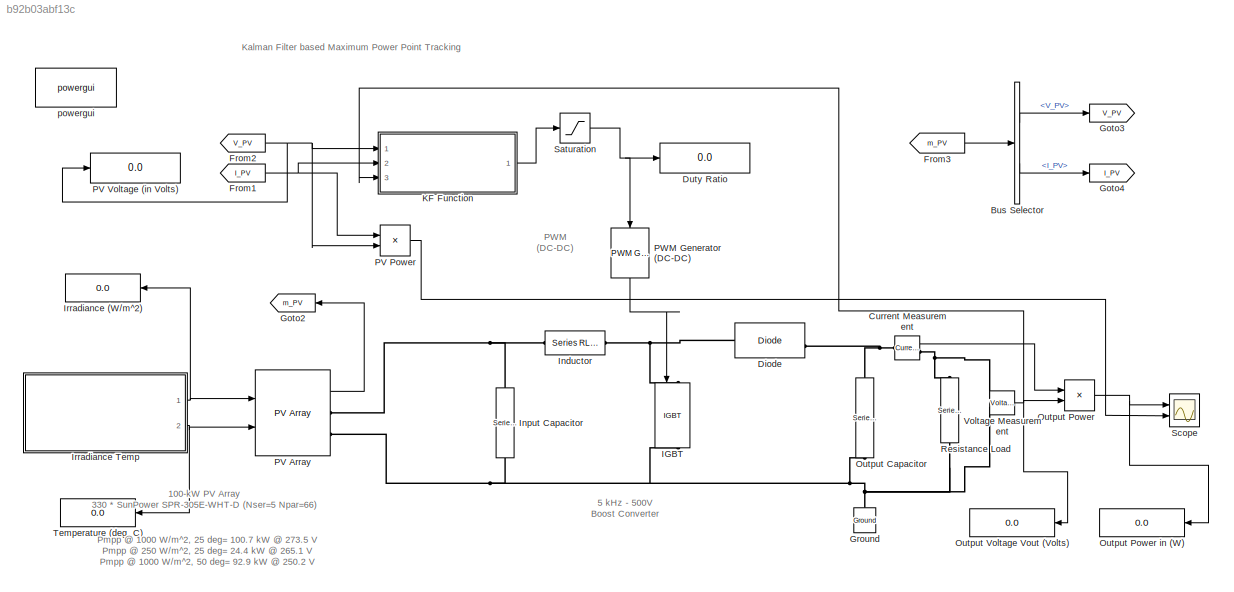
MODEL slx_b92b03abf13c
KIND model
CONFIG AbsTol = auto
CONFIG EnableMultiTasking = off
CONFIG FixedStep = auto
CONFIG MaxStep = auto
CONFIG MinStep = auto
CONFIG RelTol = 1e-3
CONFIG SampleTimeConstraint = Unconstrained
CONFIG Solver = ode23tb
CONFIG SolverName = ode23tb
CONFIG StartTime = 0.0
CONFIG StopTime = 3
BLOCK [Reference]  Output Capacitor     REF=powerlib/Elements/Series RLC Branch
  Ports = [0, 0, 0, 0, 0, 1, 1]
  SourceBlock = powerlib/Elements/Series RLC Branch
  SourceProductBaseCode = PS
  SourceProductName = Simscape Power Systems
  SourceType = Series RLC Branch
BLOCK [Reference]  Resistance Load        REF=powerlib/Elements/Series RLC Branch
  Ports = [0, 0, 0, 0, 0, 1, 1]
  SourceBlock = powerlib/Elements/Series RLC Branch
  SourceProductBaseCode = PS
  SourceProductName = Simscape Power Systems
  SourceType = Series RLC Branch
BLOCK [BusSelector] Bus Selector
  OutputAsBus = off
  OutputSignals = V_PV,I_PV
  Ports = [1, 2]
BLOCK [Reference] Current Measurement  REF=powerlib/Measurements/Current Measurement
  Ports = [0, 1, 0, 0, 0, 1, 1]
  SourceBlock = powerlib/Measurements/Current Measurement
  SourceProductBaseCode = PS
  SourceProductName = Simscape Power Systems
  SourceType = Current Measurement
  UserDataPersistent = on
BLOCK [Reference] Diode   REF=powerlib/Power
Electronics/Diode
  Ports = [0, 1, 0, 0, 0, 1, 1]
  SourceBlock = powerlib/Power\nElectronics/Diode
  SourceProductBaseCode = PS
  SourceProductName = Simscape Power Systems
  SourceType = Diode
BLOCK [Display] Duty Ratio
  Decimation = 1000
  Format = bank
  Ports = [1]
BLOCK [From] From1
  CloseFcn = tagdialog Close
  GotoTag = I_PV
  TagVisibility = global
BLOCK [From] From2
  CloseFcn = tagdialog Close
  GotoTag = V_PV
  TagVisibility = global
BLOCK [From] From3
  GotoTag = m_PV
  TagVisibility = global
BLOCK [Goto] Goto2
  GotoTag = m_PV
  TagVisibility = global
BLOCK [Goto] Goto3
  GotoTag = V_PV
  TagVisibility = global
BLOCK [Goto] Goto4
  GotoTag = I_PV
  TagVisibility = global
BLOCK [Reference] Ground  REF=powerlib/Elements/Ground
  Ports = [0, 0, 0, 0, 0, 1]
  SourceBlock = powerlib/Elements/Ground
  SourceProductBaseCode = PS
  SourceProductName = Simscape Power Systems
  SourceType = Ground
BLOCK [Reference] IGBT    REF=powerlib/Power
Electronics/IGBT
  Ports = [1, 1, 0, 0, 0, 1, 1]
  SourceBlock = powerlib/Power\nElectronics/IGBT
  SourceProductBaseCode = PS
  SourceProductName = Simscape Power Systems
  SourceType = IGBT
BLOCK [Reference] Inductor   REF=powerlib/Elements/Series RLC Branch
  Ports = [0, 0, 0, 0, 0, 1, 1]
  SourceBlock = powerlib/Elements/Series RLC Branch
  SourceProductBaseCode = PS
  SourceProductName = Simscape Power Systems
  SourceType = Series RLC Branch
BLOCK [Reference] Input Capacitor   REF=powerlib/Elements/Series RLC Branch
  Ports = [0, 0, 0, 0, 0, 1, 1]
  SourceBlock = powerlib/Elements/Series RLC Branch
  SourceProductBaseCode = PS
  SourceProductName = Simscape Power Systems
  SourceType = Series RLC Branch
BLOCK [Display] Irradiance (W//m^2)
  Decimation = 1000
  Format = bank
  Ports = [1]
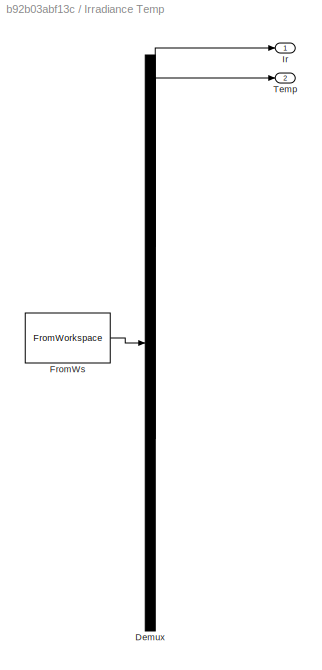
BLOCK [SubSystem] Irradiance Temp
  ClipboardFcn = sigbuilder_block('clipboard');
  CloseFcn = sigbuilder_block('close');
  ContinueFcn = sigbuilder_block('continue')
  CopyFcn = sigbuilder_block('copy');
  DeleteFcn = sigbuilder_block('delete');
  LoadFcn = sigbuilder_block('load');
  MaskHideContents = on
  ModelCloseFcn = sigbuilder_block('modelClose');
  NameChangeFcn = sigbuilder_block('namechange');
  OpenFcn = sigbuilder_block('open',[220.5 133.5 543.5 346.5 ]);
  PauseFcn = sigbuilder_block('pause')
  Ports = [0, 2]
  PreSaveFcn = sigbuilder_block('preSave');
  RequestExecContextInheritance = off
  StartFcn = sigbuilder_block('start');
  StopFcn = sigbuilder_block('stop');
  Tag = STV Subsys
BLOCK [Demux] Irradiance Temp/Demux
  Outputs = 2
  Ports = [1, 2]
  Tag = STV Demux
BLOCK [FromWorkspace] Irradiance Temp/FromWs
  SampleTime = 0
  Tag = STV FromWs
  VariableName = tuvar
  ZeroCross = on
BLOCK [Outport] Irradiance Temp/Ir
  IconDisplay = Port number
  Tag = STV Outport
BLOCK [Outport] Irradiance Temp/Temp
  IconDisplay = Port number
  Port = 2
  Tag = STV Outport
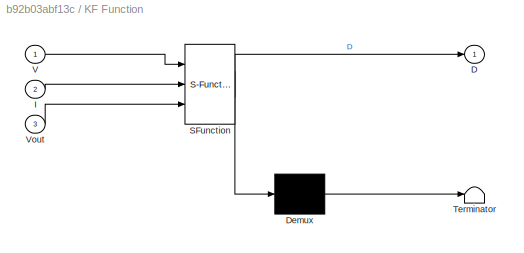
BLOCK [SubSystem] KF Function
  ErrorFcn = Stateflow.Translate.translate
  PermitHierarchicalResolution = ExplicitOnly
  Ports = [3, 1]
  RequestExecContextInheritance = off
  SFBlockType = MATLAB Function
  TreatAsAtomicUnit = on
BLOCK [Demux] KF Function/ Demux 
  Outputs = 1
  Ports = [1, 1]
BLOCK [S-Function] KF Function/ SFunction 
  EnableBusSupport = on
  FunctionName = sf_sfun
  PortCounts = [3 2]
  Ports = [3, 2]
  SFcnIsStateOwnerBlock = off
  SFunctionDeploymentMode = off
  Tag = Stateflow S-Function Kalman_MPPT 2
BLOCK [Terminator] KF Function/ Terminator 
BLOCK [Outport] KF Function/D
  IconDisplay = Port number
BLOCK [Inport] KF Function/I
  IconDisplay = Port number
  Port = 2
BLOCK [Inport] KF Function/V
  IconDisplay = Port number
BLOCK [Inport] KF Function/Vout
  IconDisplay = Port number
  Port = 3
BLOCK [Product] Output Power
  InputSameDT = off
  OutDataTypeStr = Inherit: Inherit via internal rule
  Ports = [2, 1]
  RndMeth = Floor
  SaturateOnIntegerOverflow = off
BLOCK [Display] Output Power in (W)
  Decimation = 1000
  Format = bank
  Ports = [1]
BLOCK [Display] Output Voltage Vout (Volts)
  Decimation = 1000
  Format = bank
  Ports = [1]
BLOCK [Reference] PV Array  REF=re_lib/Solar/PV Array
  Ports = [2, 1, 0, 0, 0, 0, 2]
  SourceBlock = re_lib/Solar/PV Array
  SourceProductBaseCode = PS
  SourceProductName = Simscape Power Systems
  SourceType = PV array
BLOCK [Product] PV Power
  InputSameDT = off
  OutDataTypeStr = Inherit: Inherit via internal rule
  Ports = [2, 1]
  RndMeth = Floor
  SaturateOnIntegerOverflow = off
BLOCK [Display] PV Voltage (in Volts)
  Decimation = 1
  Ports = [1]
BLOCK [Reference] PWM Generator (DC-DC)  REF=powerlib_meascontrol/Pulse & Signal
Generators/PWM Generator
(DC-DC)
  Ports = [1, 1]
  SourceBlock = powerlib_meascontrol/Pulse & Signal\nGenerators/PWM Generator\n(DC-DC)
  SourceProductBaseCode = PS
  SourceProductName = Simscape Power Systems
  SourceType = PWM Generator (DC-DC)
BLOCK [Saturate] Saturation 
  InputPortMap = u0
  LowerLimit = 0
  Ports = [1, 1]
  UpperLimit = 1
BLOCK [Scope] Scope
  Floating = off
  NumInputPorts = 2
  Ports = [2]
  ScopeSpecificationString = Simulink.scopes.TimeScopeBlockCfg('CurrentConfiguration', extmgr.ConfigurationSet(extmgr.Configuration('Core','General UI',true),extmgr.Configuration('Core','Source UI',true),extmgr.Configuration('Sources','WiredSimulink',true),extmgr.Configuration('Visuals','Time Domain',true,'SerializedDisplays',{struct('MinYLimReal','0.00000','MaxYLimReal','110000.00000','YLabelReal','Output Power (in Watts)','...<+2724ch>
BLOCK [Display] Temperature (deg. C)
  Decimation = 1000
  Format = bank
  Ports = [1]
BLOCK [Reference] Voltage Measurement  REF=powerlib/Measurements/Voltage Measurement
  Ports = [0, 1, 0, 0, 0, 2]
  SourceBlock = powerlib/Measurements/Voltage Measurement
  SourceProductBaseCode = PS
  SourceProductName = Simscape Power Systems
  SourceType = Voltage Measurement
  UserDataPersistent = on
BLOCK [Reference] powergui  REF=powerlib/powergui
  Ports = []
  Priority = 1
  SourceBlock = powerlib/powergui
  SourceProductBaseCode = PS
  SourceProductName = Simscape Power Systems
  SourceType = PSB option menu block
ANNOTATION (root): PWM (DC-DC)
ANNOTATION (root): 100-kW PV Array 330 * SunPower SPR-305E-WHT-D (Nser=5 Npar=66)
ANNOTATION (root): 5 kHz - 500V Boost Converter
ANNOTATION (root): Kalman Filter based Maximum Power Point Tracking
ANNOTATION (root): Pmpp @ 1000 W/m^2, 25 deg= 100.7 kW @ 273.5 V Pmpp @ 250 W/m^2, 25 deg= 24.4 kW @ 265.1 V Pmpp @ 1000 W/m^2, 50 deg= 92.9 kW @ 250.2 V
LINE Bus Selector:1 -> Goto3:1
LINE Bus Selector:2 -> Goto4:1
LINE Current Measurement:1 -> Output Power:1
NET From1:1 -> KF Function:2, PV Power:1
NET From2:1 -> KF Function:1, PV Power:2, PV Voltage (in Volts):1
LINE From3:1 -> Bus Selector:1
NET Irradiance Temp:1 -> Irradiance (W//m^2):1, PV Array:1
NET Irradiance Temp:2 -> PV Array:2, Temperature (deg. C):1
LINE KF Function:1 -> Saturation :1
NET Output Power:1 -> Output Power in (W):1, Scope:1
LINE PV Array:1 -> Goto2:1
LINE PV Power:1 -> Scope:2
LINE PWM Generator (DC-DC):1 -> IGBT  :1
NET Saturation :1 -> Duty Ratio:1, PWM Generator (DC-DC):1
NET Voltage Measurement:1 -> KF Function:3, Output Power:2, Output Voltage Vout (Volts):1
PNET net1:  Output Capacitor   :LConn1 -- Current Measurement:LConn1 -- Diode :RConn1
PNET net2:  Output Capacitor   :RConn1 --  Resistance Load      :RConn1 -- Ground:LConn1 -- IGBT  :RConn1 -- Input Capacitor :RConn1 -- PV Array:RConn2 -- Voltage Measurement:LConn2
PNET net3:  Resistance Load      :LConn1 -- Current Measurement:RConn1 -- Voltage Measurement:LConn1
PNET net4: Diode :LConn1 -- IGBT  :LConn1 -- Inductor :RConn1
PNET net5: Inductor :LConn1 -- Input Capacitor :LConn1 -- PV Array:RConn1
note: NET lines group one-source signal fan-out (src -> all destinations, sorted); 1:1 wires keep LINE; PNET lines group multi-terminal physical nets as a canonical sorted terminal list (undirected conserving connections); 2-terminal nets keep the pairwise PLINE form
CHART KF Function states=1 transitions=1
  STATE_LABEL 'eML_blk_kernel()'
  STATE_LABEL 'SCRIPT:\nfunction D = KalmanFilter(V, I, Vout)\n\n% PARAMETERS DEFINATION\nA = 1; %Matrix A\nstep = 5; %step size\nB = step; %Matrix B\nC = 1; %Matrix C\nVmpp = 273.5; %Maximum power point voltage (in volts)\nImpp = 368.28; %Maximum power point current (in Amp)\nQ = 50; \nR = 50;\n\n% KF PARAMETERS INTIALISATION\n%STEP-I\npersistent v_k\nif isempty(v_k)\n    v_k = Vmpp;\nend\npersistent power_k\nif isempty(power_k)\n ...<+803ch>'
